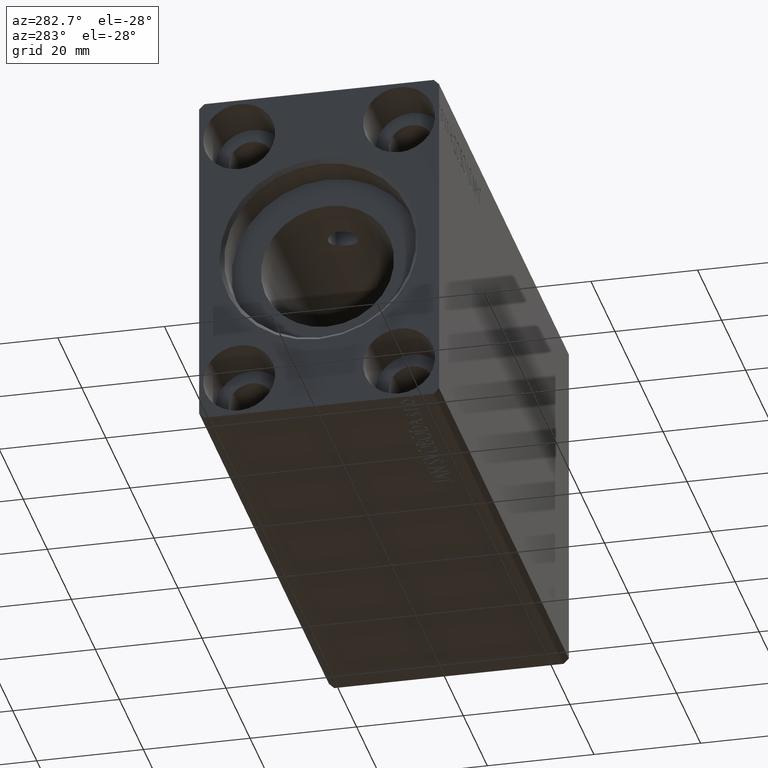
[diagram: clean part render]
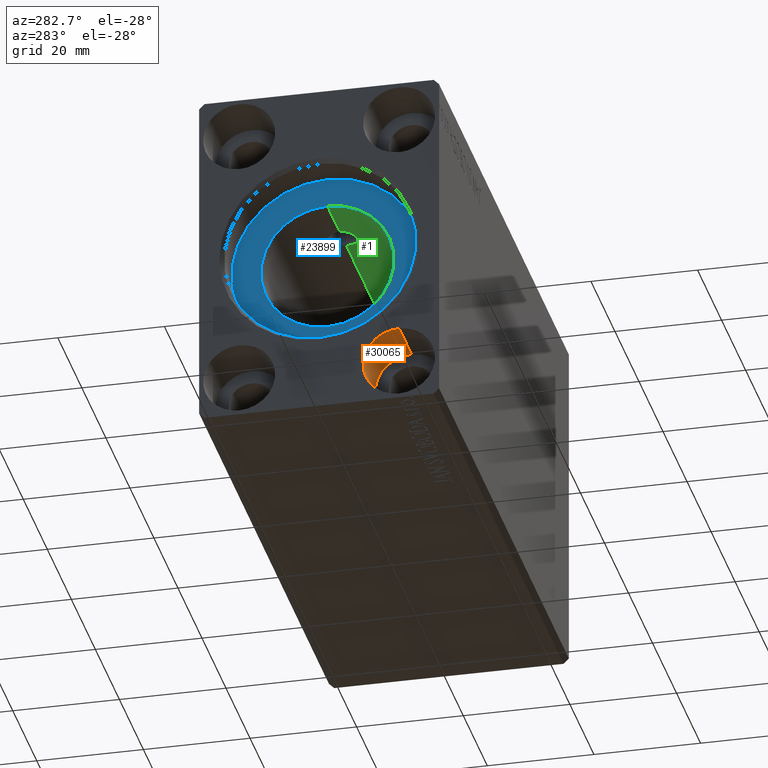
[diagram: same view with three faces highlighted in distinct colors, each labeled with its STEP entity id]
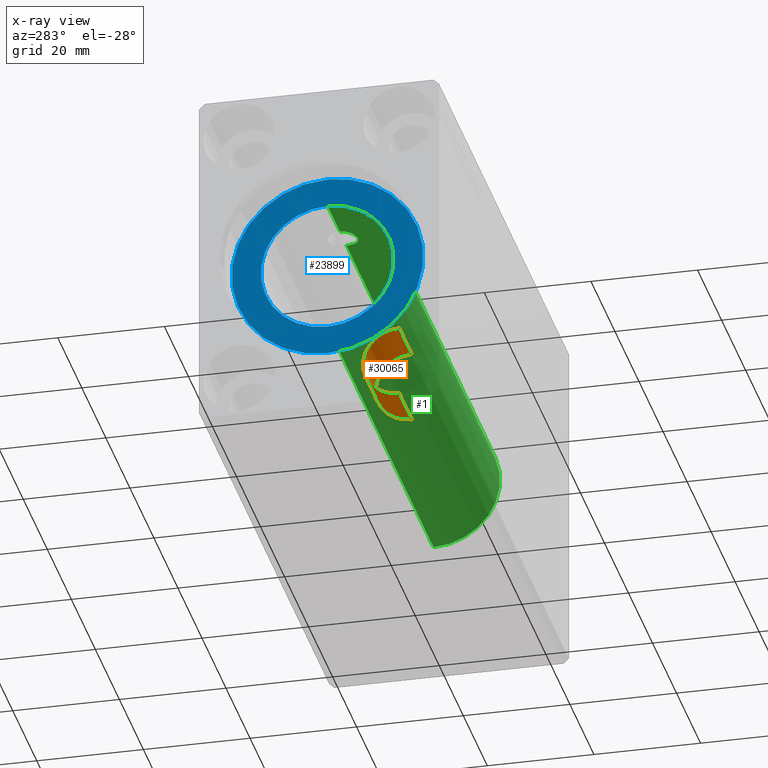
[diagram: x-ray of the same camera — body ghosted, the three highlighted faces saturated]
A machine part, auxiliary view with three faces highlighted in distinct colors.
The next image is the same camera in x-ray (body ghosted, the three faces saturated) — at least one of them is partly hidden behind the body in this view.
Their STEP definitions:

[orange] entity #30065 — the highlighted cylindrical surface (partial cylindrical patch) has radius 6.75 mm, axis along (-1, -0, -0).
#963 = AXIS2_PLACEMENT_3D ( 'NONE', #27457, #7639, #30902 ) ;
#3244 = VECTOR ( 'NONE', #10764, 1000.000000000000000 ) ;
#4967 = EDGE_CURVE ( 'NONE', #37155, #39229, #37056, .T. ) ;
#5950 = DIRECTION ( 'NONE',  ( 1.000000000000000000, -0.000000000000000000, -0.000000000000000000 ) ) ;
#6396 = ORIENTED_EDGE ( 'NONE', *, *, #23594, .T. ) ;
#7639 = DIRECTION ( 'NONE',  ( 1.000000000000000000, -0.000000000000000000, -0.000000000000000000 ) ) ;
#7850 = ORIENTED_EDGE ( 'NONE', *, *, #17671, .F. ) ;
#8438 = LINE ( 'NONE', #24187, #36575 ) ;
#8874 = VERTEX_POINT ( 'NONE', #41877 ) ;
#10091 = CARTESIAN_POINT ( 'NONE',  ( 10.33000000000000007, -15.00000000000000000, -18.25000000000000355 ) ) ;
#10441 = ORIENTED_EDGE ( 'NONE', *, *, #4967, .T. ) ;
#10764 = DIRECTION ( 'NONE',  ( -1.000000000000000000, -0.000000000000000000, -0.000000000000000000 ) ) ;
#13985 = CARTESIAN_POINT ( 'NONE',  ( 10.33000000000000007, -15.00000000000000000, -18.25000000000000711 ) ) ;
#17671 = EDGE_CURVE ( 'NONE', #32271, #8874, #8438, .T. ) ;
#18023 = EDGE_LOOP ( 'NONE', ( #7850, #6396, #10441, #24579 ) ) ;
#18582 = CARTESIAN_POINT ( 'NONE',  ( 10.33000000000000007, -15.00000000000000000, -25.00000000000000000 ) ) ;
#19090 = DIRECTION ( 'NONE',  ( 0.000000000000000000, 0.000000000000000000, -1.000000000000000000 ) ) ;
#21658 = AXIS2_PLACEMENT_3D ( 'NONE', #29012, #5950, #19090 ) ;
#22266 = CIRCLE ( 'NONE', #963, 6.749999999999999112 ) ;
#23594 = EDGE_CURVE ( 'NONE', #32271, #37155, #22266, .T. ) ;
#23792 = AXIS2_PLACEMENT_3D ( 'NONE', #18582, #27448, #30895 ) ;
#24187 = CARTESIAN_POINT ( 'NONE',  ( 10.33000000000000007, -15.00000000000000000, -31.75000000000000000 ) ) ;
#24220 = CYLINDRICAL_SURFACE ( 'NONE', #23792, 6.749999999999995559 ) ;
#24579 = ORIENTED_EDGE ( 'NONE', *, *, #26727, .F. ) ;
#26727 = EDGE_CURVE ( 'NONE', #8874, #39229, #40242, .T. ) ;
#27425 = CARTESIAN_POINT ( 'NONE',  ( 10.33000000000000007, -15.00000000000000000, -31.75000000000000000 ) ) ;
#27448 = DIRECTION ( 'NONE',  ( -1.000000000000000000, -0.000000000000000000, -0.000000000000000000 ) ) ;
#27457 = CARTESIAN_POINT ( 'NONE',  ( 10.33000000000000007, -15.00000000000000000, -25.00000000000000000 ) ) ;
#29012 = CARTESIAN_POINT ( 'NONE',  ( 0.000000000000000000, -15.00000000000000000, -25.00000000000000000 ) ) ;
#30065 = ADVANCED_FACE ( 'NONE', ( #37360 ), #24220, .F. ) ;
#30895 = DIRECTION ( 'NONE',  ( 0.000000000000000000, 0.000000000000000000, 1.000000000000000000 ) ) ;
#30902 = DIRECTION ( 'NONE',  ( 0.000000000000000000, 0.000000000000000000, -1.000000000000000000 ) ) ;
#32271 = VERTEX_POINT ( 'NONE', #27425 ) ;
#34714 = DIRECTION ( 'NONE',  ( -1.000000000000000000, -0.000000000000000000, -0.000000000000000000 ) ) ;
#36575 = VECTOR ( 'NONE', #34714, 1000.000000000000000 ) ;
#37056 = LINE ( 'NONE', #13985, #3244 ) ;
#37155 = VERTEX_POINT ( 'NONE', #10091 ) ;
#37360 = FACE_OUTER_BOUND ( 'NONE', #18023, .T. ) ;
#39229 = VERTEX_POINT ( 'NONE', #39508 ) ;
#39508 = CARTESIAN_POINT ( 'NONE',  ( 0.000000000000000000, -15.00000000000000000, -18.25000000000000355 ) ) ;
#40242 = CIRCLE ( 'NONE', #21658, 6.749999999999999112 ) ;
#41877 = CARTESIAN_POINT ( 'NONE',  ( 0.000000000000000000, -15.00000000000000000, -31.75000000000000000 ) ) ;

[blue] entity #23899 — the highlighted planar face has unit normal (-1, 0, 0).
#2804 = DIRECTION ( 'NONE',  ( 0.000000000000000000, 0.000000000000000000, 1.000000000000000000 ) ) ;
#4499 = AXIS2_PLACEMENT_3D ( 'NONE', #15934, #23456, #17212 ) ;
#5823 = ORIENTED_EDGE ( 'NONE', *, *, #25136, .F. ) ;
#9022 = DIRECTION ( 'NONE',  ( 0.000000000000000000, 0.000000000000000000, 1.000000000000000000 ) ) ;
#9491 = VERTEX_POINT ( 'NONE', #28221 ) ;
#9836 = CIRCLE ( 'NONE', #40793, 18.00000000000000000 ) ;
#9847 = DIRECTION ( 'NONE',  ( 0.000000000000000000, 0.000000000000000000, 1.000000000000000000 ) ) ;
#10151 = AXIS2_PLACEMENT_3D ( 'NONE', #22168, #38330, #9022 ) ;
#11239 = ORIENTED_EDGE ( 'NONE', *, *, #39640, .T. ) ;
#12047 = CIRCLE ( 'NONE', #4499, 12.50000000000000000 ) ;
#12235 = PLANE ( 'NONE',  #26420 ) ;
#13086 = FACE_OUTER_BOUND ( 'NONE', #27192, .T. ) ;
#14636 = CARTESIAN_POINT ( 'NONE',  ( 7.000000000000006217, 0.000000000000000000, 12.50000000000000000 ) ) ;
#14764 = AXIS2_PLACEMENT_3D ( 'NONE', #27618, #27198, #40760 ) ;
#15934 = CARTESIAN_POINT ( 'NONE',  ( 7.000000000000006217, 0.000000000000000000, 0.000000000000000000 ) ) ;
#17212 = DIRECTION ( 'NONE',  ( 0.000000000000000000, 0.000000000000000000, 1.000000000000000000 ) ) ;
#17483 = CIRCLE ( 'NONE', #14764, 12.50000000000000000 ) ;
#17915 = VERTEX_POINT ( 'NONE', #14636 ) ;
#19172 = CARTESIAN_POINT ( 'NONE',  ( 7.000000000000000000, 0.000000000000000000, 0.000000000000000000 ) ) ;
#20433 = CARTESIAN_POINT ( 'NONE',  ( 7.000000000000000000, 2.204364238465235428E-15, -18.00000000000000000 ) ) ;
#21902 = EDGE_CURVE ( 'NONE', #35783, #26516, #9836, .T. ) ;
#22168 = CARTESIAN_POINT ( 'NONE',  ( 7.000000000000000000, 0.000000000000000000, 0.000000000000000000 ) ) ;
#23456 = DIRECTION ( 'NONE',  ( -1.000000000000000000, 0.000000000000000000, 0.000000000000000000 ) ) ;
#23899 = ADVANCED_FACE ( 'NONE', ( #42596, #13086 ), #12235, .T. ) ;
#23910 = CIRCLE ( 'NONE', #10151, 18.00000000000000000 ) ;
#24668 = ORIENTED_EDGE ( 'NONE', *, *, #21902, .T. ) ;
#25136 = EDGE_CURVE ( 'NONE', #9491, #17915, #17483, .T. ) ;
#26231 = CARTESIAN_POINT ( 'NONE',  ( 7.000000000000000000, 0.000000000000000000, 0.000000000000000000 ) ) ;
#26420 = AXIS2_PLACEMENT_3D ( 'NONE', #26231, #39365, #9847 ) ;
#26516 = VERTEX_POINT ( 'NONE', #20433 ) ;
#27192 = EDGE_LOOP ( 'NONE', ( #24668, #11239 ) ) ;
#27198 = DIRECTION ( 'NONE',  ( -1.000000000000000000, 0.000000000000000000, 0.000000000000000000 ) ) ;
#27618 = CARTESIAN_POINT ( 'NONE',  ( 7.000000000000006217, 0.000000000000000000, 0.000000000000000000 ) ) ;
#28221 = CARTESIAN_POINT ( 'NONE',  ( 7.000000000000006217, 1.530808498934191521E-15, -12.50000000000000000 ) ) ;
#32319 = DIRECTION ( 'NONE',  ( -1.000000000000000000, 0.000000000000000000, 0.000000000000000000 ) ) ;
#32684 = CARTESIAN_POINT ( 'NONE',  ( 7.000000000000000000, 0.000000000000000000, 18.00000000000000000 ) ) ;
#33576 = EDGE_CURVE ( 'NONE', #17915, #9491, #12047, .T. ) ;
#33686 = EDGE_LOOP ( 'NONE', ( #36385, #5823 ) ) ;
#35783 = VERTEX_POINT ( 'NONE', #32684 ) ;
#36385 = ORIENTED_EDGE ( 'NONE', *, *, #33576, .F. ) ;
#38330 = DIRECTION ( 'NONE',  ( -1.000000000000000000, 0.000000000000000000, 0.000000000000000000 ) ) ;
#39365 = DIRECTION ( 'NONE',  ( -1.000000000000000000, 0.000000000000000000, 0.000000000000000000 ) ) ;
#39640 = EDGE_CURVE ( 'NONE', #26516, #35783, #23910, .T. ) ;
#40760 = DIRECTION ( 'NONE',  ( 0.000000000000000000, 0.000000000000000000, 1.000000000000000000 ) ) ;
#40793 = AXIS2_PLACEMENT_3D ( 'NONE', #19172, #32319, #2804 ) ;
#42596 = FACE_BOUND ( 'NONE', #33686, .T. ) ;

[green] entity #1 — the highlighted cylindrical surface (partial cylindrical patch) has radius 12.5 mm, axis along (-1, -0, -0).
#1 = ADVANCED_FACE ( 'NONE', ( #36414 ), #20048, .F. ) ;
#216 = ORIENTED_EDGE ( 'NONE', *, *, #38469, .T. ) ;
#420 = CARTESIAN_POINT ( 'NONE',  ( 22.74999999999999645, -1.511678664438758190E-15, 12.50000000000000000 ) ) ;
#648 = DIRECTION ( 'NONE',  ( 0.000000000000000000, 0.000000000000000000, 1.000000000000000000 ) ) ;
#920 = CARTESIAN_POINT ( 'NONE',  ( 92.25000000000000000, -8.104062742644080798E-22, 12.50000000000000000 ) ) ;
#1237 = CARTESIAN_POINT ( 'NONE',  ( 17.24999999999999645, -8.103620980537157032E-22, 12.50000000000000000 ) ) ;
#1514 = VERTEX_POINT ( 'NONE', #5866 ) ;
#1660 = DIRECTION ( 'NONE',  ( 0.000000000000000000, 0.000000000000000000, 1.000000000000000000 ) ) ;
#1873 = DIRECTION ( 'NONE',  ( -1.000000000000000000, 0.000000000000000000, 0.000000000000000000 ) ) ;
#2898 = CARTESIAN_POINT ( 'NONE',  ( 93.41585669364719990, -2.255652267226329943, 12.29519247366886425 ) ) ;
#3026 = CARTESIAN_POINT ( 'NONE',  ( 17.92778125007978929, -1.816738551942330027, 12.36794003061528002 ) ) ;
#3334 = CARTESIAN_POINT ( 'NONE',  ( 95.01210293268334794, -2.756419155118988495, 12.19230702813761269 ) ) ;
#3540 = CARTESIAN_POINT ( 'NONE',  ( 93.26426980813994305, -2.141305189148866361, 12.31591260229741103 ) ) ;
#4286 = B_SPLINE_CURVE_WITH_KNOTS ( 'NONE', 3,
 ( #20036, #22838, #32546, #26073, #23048, #10122, #3026, #15954, #32330, #6463, #19605, #29102, #6257, #29526, #39416, #42222, #13562, #26715, #19823, #13346, #12710, #32974, #25858, #42439, #16168, #29319, #38998, #420 ),
 .UNSPECIFIED., .F., .F.,
 ( 4, 2, 2, 2, 2, 2, 2, 2, 2, 2, 2, 2, 2, 4 ),
 ( 0.008624191108698777211, 0.009701931017304699784, 0.01024080097160766194, 0.01077967092591062409, 0.01131854088021358624, 0.01185741083451654840, 0.01293515074312247271, 0.01347402069742543659, 0.01401289065172839875, 0.01455176060603136090, 0.01509063056033432479, 0.01616837046894024216, 0.01670724042324319564, 0.01724611037754615606 ),
 .UNSPECIFIED. ) ;
#4771 = B_SPLINE_CURVE_WITH_KNOTS ( 'NONE', 3,
 ( #13015, #33058, #15823, #9352, #32417, #42310, #26155, #3540, #2898, #16677, #22922, #36061, #19693, #32848, #3334, #41882 ),
 .UNSPECIFIED., .F., .F.,
 ( 4, 2, 2, 2, 2, 2, 2, 4 ),
 ( 0.008624191108698803232, 0.009751976830345007036, 0.01031586969116810720, 0.01087976255199120910, 0.01144365541281431101, 0.01200754827363741117, 0.01257144113446051134, 0.01313533399528361324 ),
 .UNSPECIFIED. ) ;
#4828 = EDGE_CURVE ( 'NONE', #8226, #1514, #35330, .T. ) ;
#4887 = ORIENTED_EDGE ( 'NONE', *, *, #6511, .T. ) ;
#5227 = EDGE_LOOP ( 'NONE', ( #7000, #5617, #41403, #29261, #4887, #13460, #216 ) ) ;
#5617 = ORIENTED_EDGE ( 'NONE', *, *, #40400, .T. ) ;
#5866 = CARTESIAN_POINT ( 'NONE',  ( 22.74999999999999645, -1.511678664438758190E-15, 12.50000000000000000 ) ) ;
#6257 = CARTESIAN_POINT ( 'NONE',  ( 19.63583733830666844, -2.749843584008484054, 12.19378367403302121 ) ) ;
#6463 = CARTESIAN_POINT ( 'NONE',  ( 18.61950922402897746, -2.385110744809373351, 12.27075736690464858 ) ) ;
#6511 = EDGE_CURVE ( 'NONE', #7610, #1514, #4286, .T. ) ;
#7000 = ORIENTED_EDGE ( 'NONE', *, *, #19898, .F. ) ;
#7610 = VERTEX_POINT ( 'NONE', #1237 ) ;
#8226 = VERTEX_POINT ( 'NONE', #920 ) ;
#8889 = CARTESIAN_POINT ( 'NONE',  ( 95.20000000000000284, 1.530808498934191521E-15, -12.50000000000000000 ) ) ;
#9352 = CARTESIAN_POINT ( 'NONE',  ( 92.55434960664045718, -1.271415226545248078, 12.43637044210127129 ) ) ;
#9401 = LINE ( 'NONE', #22332, #28052 ) ;
#9491 = VERTEX_POINT ( 'NONE', #28221 ) ;
#10036 = DIRECTION ( 'NONE',  ( -1.000000000000000000, -0.000000000000000000, -0.000000000000000000 ) ) ;
#10122 = CARTESIAN_POINT ( 'NONE',  ( 17.81440297569589859, -1.678694069001121170, 12.38768223437474703 ) ) ;
#10493 = CIRCLE ( 'NONE', #14619, 12.50000000000000000 ) ;
#12710 = CARTESIAN_POINT ( 'NONE',  ( 21.81696503902615447, -2.071964331967046657, 12.32774466729451568 ) ) ;
#13015 = CARTESIAN_POINT ( 'NONE',  ( 92.25000000000000000, -8.104062742644080798E-22, 12.50000000000000000 ) ) ;
#13346 = CARTESIAN_POINT ( 'NONE',  ( 21.67672319205415477, -2.187128495874284262, 12.30759172996874540 ) ) ;
#13460 = ORIENTED_EDGE ( 'NONE', *, *, #4828, .F. ) ;
#13562 = CARTESIAN_POINT ( 'NONE',  ( 20.88731491864838929, -2.609111504363110345, 12.22487130485038342 ) ) ;
#14619 = AXIS2_PLACEMENT_3D ( 'NONE', #31808, #1873, #1660 ) ;
#14636 = CARTESIAN_POINT ( 'NONE',  ( 7.000000000000006217, 0.000000000000000000, 12.50000000000000000 ) ) ;
#14764 = AXIS2_PLACEMENT_3D ( 'NONE', #27618, #27198, #40760 ) ;
#15823 = CARTESIAN_POINT ( 'NONE',  ( 92.32931642710190090, -0.7554861698105063139, 12.48192559075202901 ) ) ;
#15954 = CARTESIAN_POINT ( 'NONE',  ( 18.18114537317828194, -2.070361649597388887, 12.32802020629775619 ) ) ;
#16168 = CARTESIAN_POINT ( 'NONE',  ( 22.66110576732047477, -0.7167498857967387060, 12.48069645505988134 ) ) ;
#16677 = CARTESIAN_POINT ( 'NONE',  ( 93.73583487079748977, -2.449359853474791127, 12.25807331612080020 ) ) ;
#17483 = CIRCLE ( 'NONE', #14764, 12.50000000000000000 ) ;
#17915 = VERTEX_POINT ( 'NONE', #14636 ) ;
#18969 = AXIS2_PLACEMENT_3D ( 'NONE', #23703, #37067, #648 ) ;
#19605 = CARTESIAN_POINT ( 'NONE',  ( 18.77715405157148609, -2.469786832673802390, 12.25378231626124936 ) ) ;
#19693 = CARTESIAN_POINT ( 'NONE',  ( 94.44680385125064959, -2.700348776726535061, 12.20486696098262236 ) ) ;
#19823 = CARTESIAN_POINT ( 'NONE',  ( 21.37717146662758338, -2.387117607438817402, 12.27037141969695710 ) ) ;
#19898 = EDGE_CURVE ( 'NONE', #30862, #24234, #10493, .T. ) ;
#20036 = CARTESIAN_POINT ( 'NONE',  ( 17.24999999999999645, -8.103620980537157032E-22, 12.50000000000000000 ) ) ;
#20048 = CYLINDRICAL_SURFACE ( 'NONE', #18969, 12.50000000000000000 ) ;
#20282 = DIRECTION ( 'NONE',  ( -1.000000000000000000, -0.000000000000000000, -0.000000000000000000 ) ) ;
#22332 = CARTESIAN_POINT ( 'NONE',  ( 95.20000000000000284, 1.530808498934191521E-15, -12.50000000000000000 ) ) ;
#22838 = CARTESIAN_POINT ( 'NONE',  ( 17.25000000000000000, -0.3594857543935726096, 12.50000000000000355 ) ) ;
#22922 = CARTESIAN_POINT ( 'NONE',  ( 93.90694933108504472, -2.530536835538856888, 12.24134504472847595 ) ) ;
#23048 = CARTESIAN_POINT ( 'NONE',  ( 17.61437575726019134, -1.379726459265969041, 12.42453378661528163 ) ) ;
#23703 = CARTESIAN_POINT ( 'NONE',  ( 95.20000000000000284, 0.000000000000000000, 0.000000000000000000 ) ) ;
#24234 = VERTEX_POINT ( 'NONE', #39110 ) ;
#25136 = EDGE_CURVE ( 'NONE', #9491, #17915, #17483, .T. ) ;
#25248 = VECTOR ( 'NONE', #25639, 1000.000000000000000 ) ;
#25426 = CARTESIAN_POINT ( 'NONE',  ( 95.20000000000000284, 0.000000000000000000, 12.50000000000000000 ) ) ;
#25639 = DIRECTION ( 'NONE',  ( -1.000000000000000000, -0.000000000000000000, -0.000000000000000000 ) ) ;
#25858 = CARTESIAN_POINT ( 'NONE',  ( 22.40109433766145131, -1.387665903832268066, 12.42717106579814157 ) ) ;
#26073 = CARTESIAN_POINT ( 'NONE',  ( 17.52844697591320511, -1.219035651181356261, 12.44152548389028823 ) ) ;
#26155 = CARTESIAN_POINT ( 'NONE',  ( 92.98863135026904558, -1.884766130555698416, 12.35777276751818832 ) ) ;
#26545 = VECTOR ( 'NONE', #20282, 1000.000000000000000 ) ;
#26715 = CARTESIAN_POINT ( 'NONE',  ( 21.21929935369255205, -2.471456998035943542, 12.25344202945495731 ) ) ;
#26955 = LINE ( 'NONE', #33651, #26545 ) ;
#27198 = DIRECTION ( 'NONE',  ( -1.000000000000000000, 0.000000000000000000, 0.000000000000000000 ) ) ;
#27618 = CARTESIAN_POINT ( 'NONE',  ( 7.000000000000006217, 0.000000000000000000, 0.000000000000000000 ) ) ;
#28052 = VECTOR ( 'NONE', #10036, 1000.000000000000000 ) ;
#28221 = CARTESIAN_POINT ( 'NONE',  ( 7.000000000000006217, 1.530808498934191521E-15, -12.50000000000000000 ) ) ;
#29102 = CARTESIAN_POINT ( 'NONE',  ( 19.27806099659725447, -2.678077841496244726, 12.21056965450630294 ) ) ;
#29261 = ORIENTED_EDGE ( 'NONE', *, *, #34389, .F. ) ;
#29319 = CARTESIAN_POINT ( 'NONE',  ( 22.73205878433288163, -0.3620346704467074517, 12.49601717746612906 ) ) ;
#29526 = CARTESIAN_POINT ( 'NONE',  ( 20.18030666863672806, -2.750077826247132151, 12.19373084646329808 ) ) ;
#30862 = VERTEX_POINT ( 'NONE', #8889 ) ;
#31808 = CARTESIAN_POINT ( 'NONE',  ( 95.20000000000000284, 0.000000000000000000, 0.000000000000000000 ) ) ;
#32330 = CARTESIAN_POINT ( 'NONE',  ( 18.32211535654301926, -2.186140702424580251, 12.30776293449189041 ) ) ;
#32417 = CARTESIAN_POINT ( 'NONE',  ( 92.64839367573186735, -1.437938913469329449, 12.41797685231196091 ) ) ;
#32546 = CARTESIAN_POINT ( 'NONE',  ( 17.32247006600863415, -0.7223728479637264721, 12.48353293779831397 ) ) ;
#32848 = CARTESIAN_POINT ( 'NONE',  ( 94.81979108790849864, -2.750533446981220820, 12.19365518654235636 ) ) ;
#32974 = CARTESIAN_POINT ( 'NONE',  ( 22.19606964241015845, -1.693331246281259972, 12.38741007596727606 ) ) ;
#33058 = CARTESIAN_POINT ( 'NONE',  ( 92.25000000000001421, -0.3761787957399726490, 12.50000000000000178 ) ) ;
#33651 = CARTESIAN_POINT ( 'NONE',  ( 95.20000000000000284, 0.000000000000000000, 12.50000000000000000 ) ) ;
#34389 = EDGE_CURVE ( 'NONE', #7610, #17915, #26955, .T. ) ;
#35330 = LINE ( 'NONE', #25426, #25248 ) ;
#36061 = CARTESIAN_POINT ( 'NONE',  ( 94.26421508550920692, -2.656500894116585521, 12.21462845033262390 ) ) ;
#36414 = FACE_OUTER_BOUND ( 'NONE', #5227, .T. ) ;
#37067 = DIRECTION ( 'NONE',  ( -1.000000000000000000, -0.000000000000000000, -0.000000000000000000 ) ) ;
#38469 = EDGE_CURVE ( 'NONE', #8226, #24234, #4771, .T. ) ;
#38998 = CARTESIAN_POINT ( 'NONE',  ( 22.74999999999998224, -0.1822513952969483375, 12.49999999999999822 ) ) ;
#39110 = CARTESIAN_POINT ( 'NONE',  ( 95.20000000000000284, -2.742717630380503202, 12.19538847269737225 ) ) ;
#39416 = CARTESIAN_POINT ( 'NONE',  ( 20.35918687706753971, -2.732363470008687845, 12.19776519060171616 ) ) ;
#40400 = EDGE_CURVE ( 'NONE', #30862, #9491, #9401, .T. ) ;
#40760 = DIRECTION ( 'NONE',  ( 0.000000000000000000, 0.000000000000000000, 1.000000000000000000 ) ) ;
#41403 = ORIENTED_EDGE ( 'NONE', *, *, #25136, .T. ) ;
#41882 = CARTESIAN_POINT ( 'NONE',  ( 95.20000000000000284, -2.742717630380503202, 12.19538847269737225 ) ) ;
#42222 = CARTESIAN_POINT ( 'NONE',  ( 20.71188753855133413, -2.662337596427391428, 12.21324053230518203 ) ) ;
#42310 = CARTESIAN_POINT ( 'NONE',  ( 92.86554848599308798, -1.744086396243227144, 12.37869056345882157 ) ) ;
#42439 = CARTESIAN_POINT ( 'NONE',  ( 22.60764339706747350, -0.8915091606273432001, 12.46927266348501639 ) ) ;